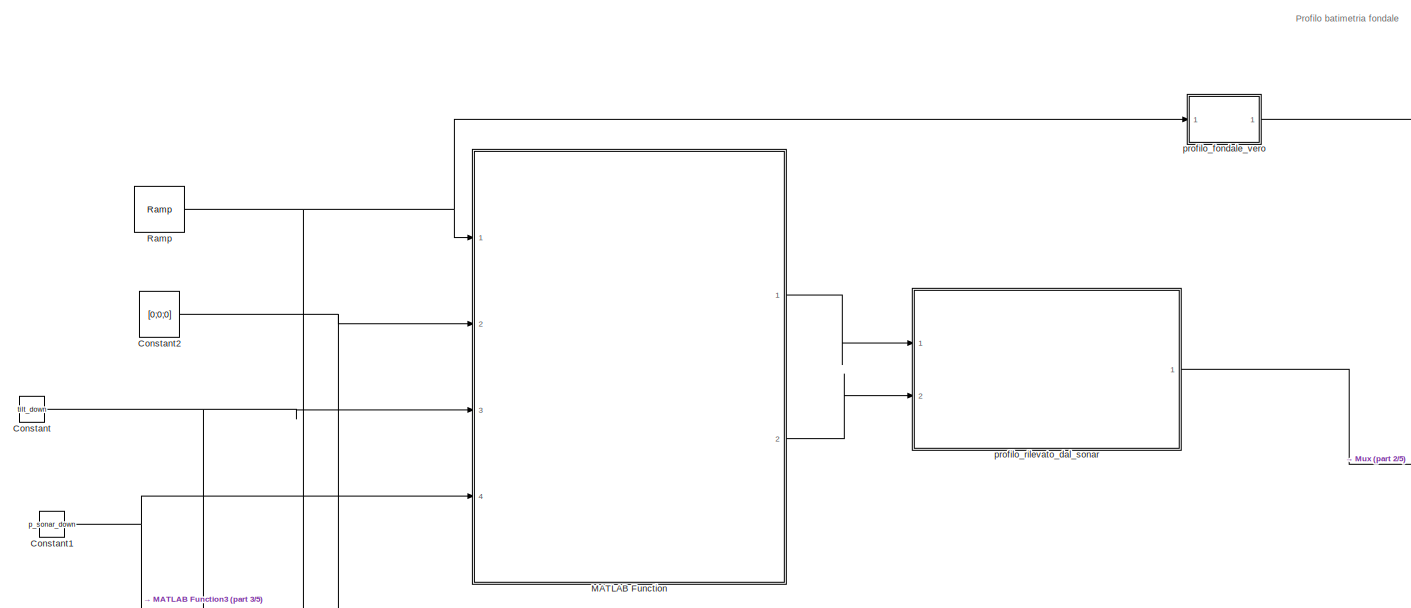
[diagram: root canvas - part 1/5, top left region]
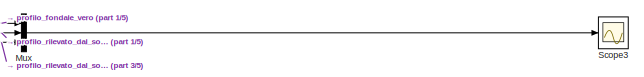
[diagram: root canvas - part 2/5, top right region]
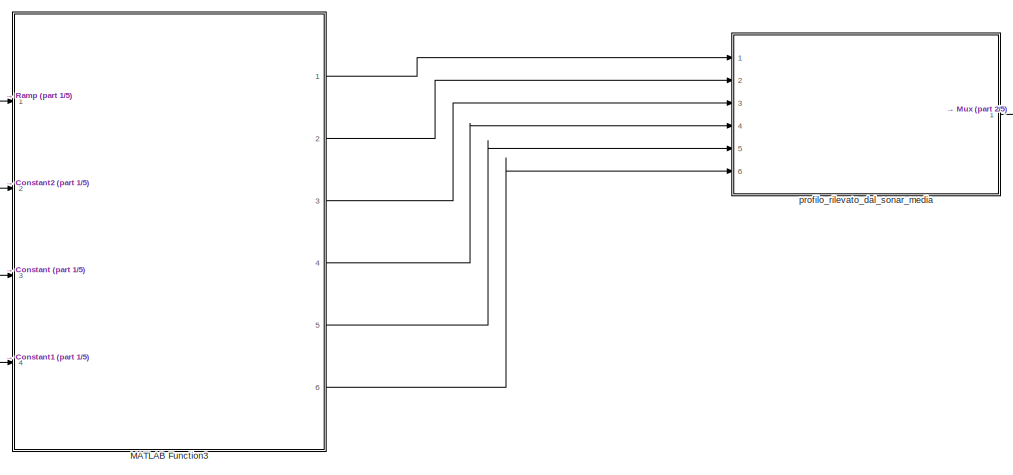
[diagram: root canvas - part 3/5, central region]
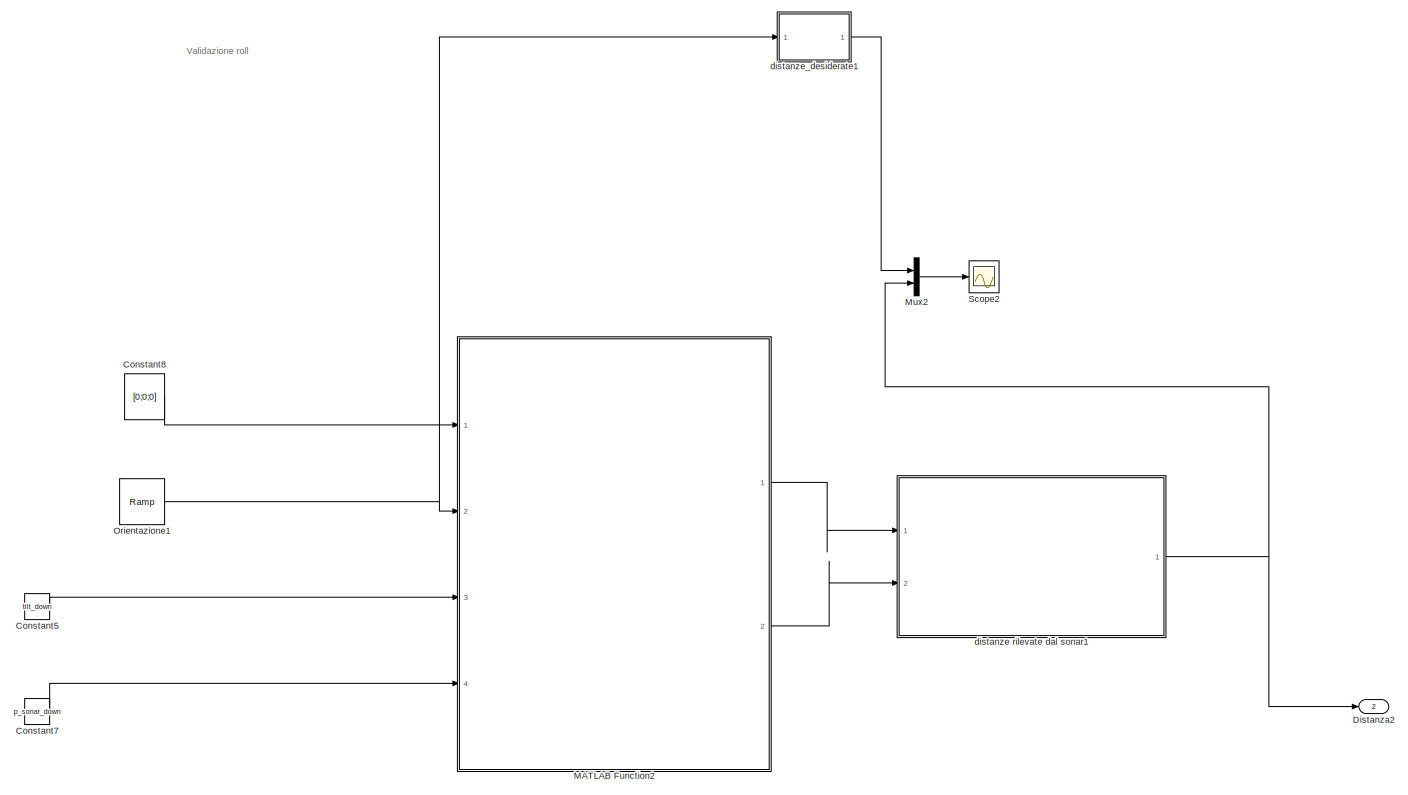
[diagram: root canvas - part 4/5, bottom right region]
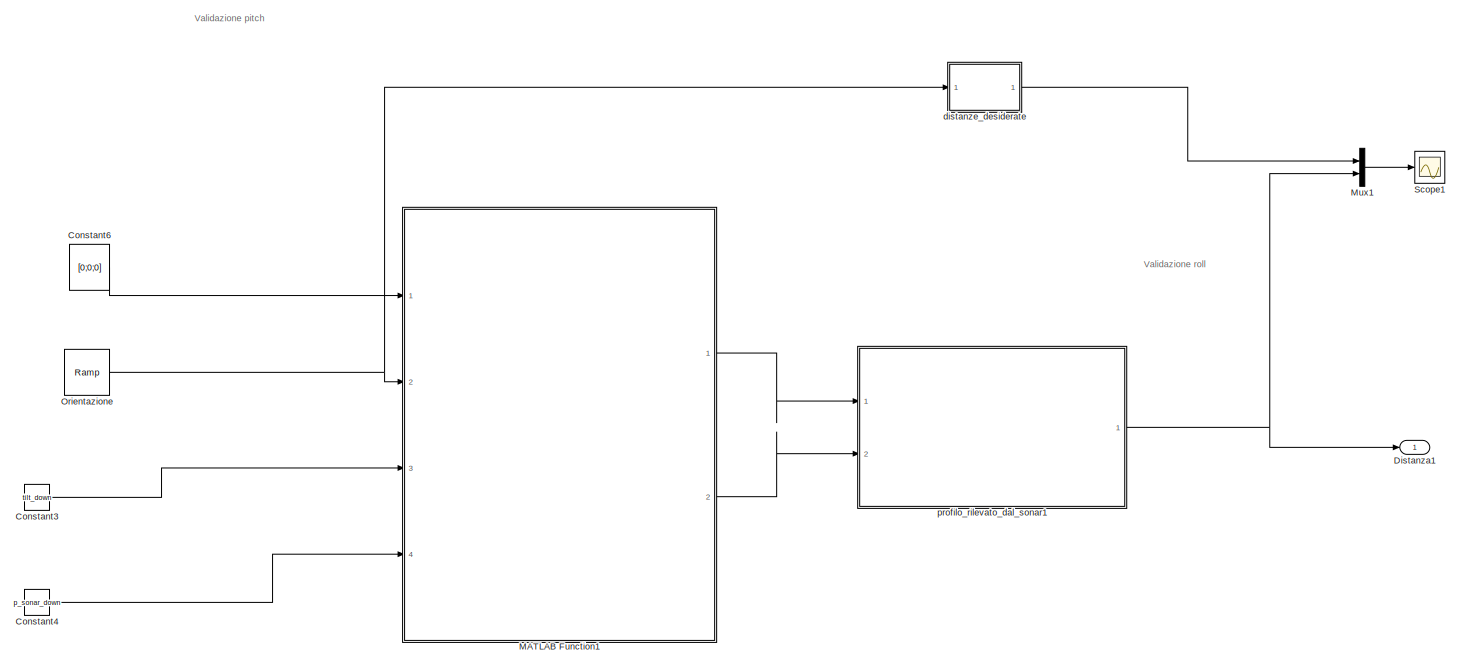
[diagram: root canvas - part 5/5, bottom left region]
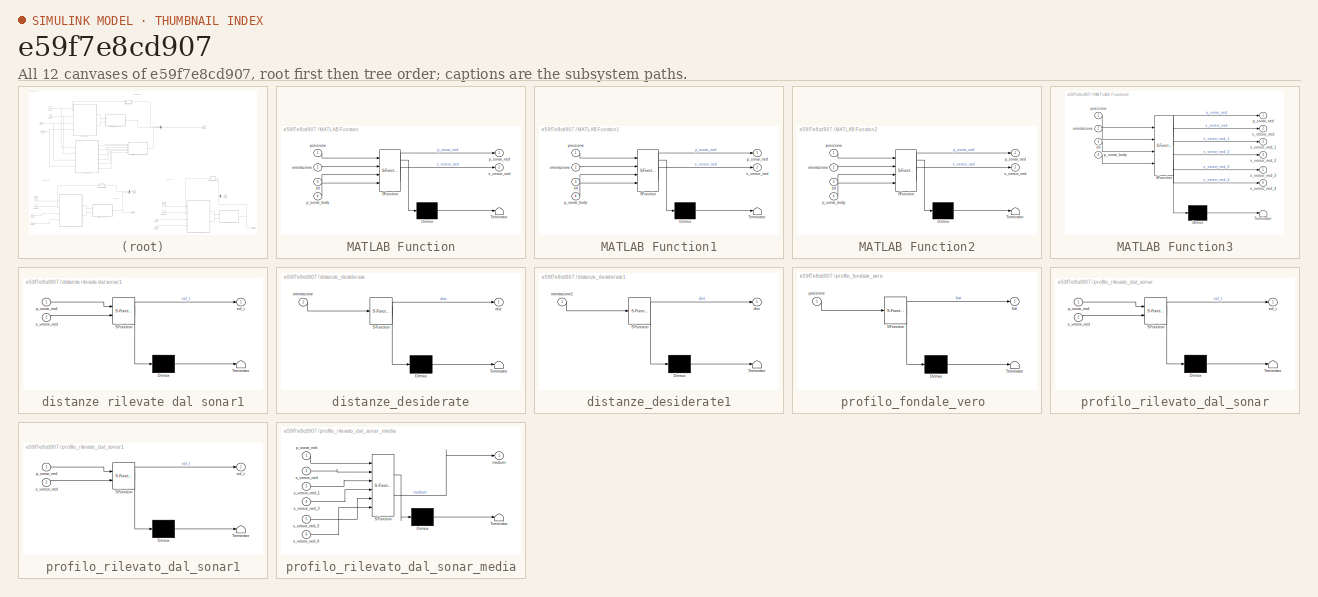
[diagram: thumbnail index - all 12 canvases of the model, root first then tree order]
MODEL slx_e59f7e8cd907
KIND model
CONFIG AbsTol = auto
CONFIG EnableMultiTasking = off
CONFIG FixedStep = auto
CONFIG MaxStep = auto
CONFIG MinStep = auto
CONFIG RelTol = 1e-3
CONFIG SampleTimeConstraint = Unconstrained
CONFIG Solver = VariableStepAuto
CONFIG SolverName = VariableStepAuto
CONFIG StartTime = 0.0
CONFIG StopTime = 5
BLOCK [Constant] Constant
  SampleTime = Ts_sonar_down
  Value = tilt_down
  VectorParams1D = off
BLOCK [Constant] Constant1
  SampleTime = Ts_sonar_down
  Value = p_sonar_down
  VectorParams1D = off
BLOCK [Constant] Constant2
  Value = [0;0;0]
  VectorParams1D = off
BLOCK [Constant] Constant3
  SampleTime = Ts_sonar_down
  Value = tilt_down
  VectorParams1D = off
BLOCK [Constant] Constant4
  SampleTime = Ts_sonar_down
  Value = p_sonar_down
  VectorParams1D = off
BLOCK [Constant] Constant5
  SampleTime = Ts_sonar_down
  Value = tilt_down
  VectorParams1D = off
BLOCK [Constant] Constant6
  Value = [0;0;0]
  VectorParams1D = off
BLOCK [Constant] Constant7
  SampleTime = Ts_sonar_down
  Value = p_sonar_down
  VectorParams1D = off
BLOCK [Constant] Constant8
  Value = [0;0;0]
  VectorParams1D = off
BLOCK [Outport] Distanza1
  VectorParamsAs1DForOutWhenUnconnected = off
BLOCK [Outport] Distanza2
  Port = 2
  VectorParamsAs1DForOutWhenUnconnected = off
BLOCK [SubSystem] MATLAB Function
  ErrorFcn = Stateflow.Translate.translate
  PermitHierarchicalResolution = ExplicitOnly
  Ports = [4, 2]
  RequestExecContextInheritance = off
  SFBlockType = MATLAB Function
  TreatAsAtomicUnit = on
BLOCK [Demux] MATLAB Function/ Demux 
  Outputs = 1
  Ports = [1, 1]
BLOCK [S-Function] MATLAB Function/ SFunction 
  EnableBusSupport = on
  FunctionName = sf_sfun
  PortCounts = [4 3]
  Ports = [4, 3]
  SFcnIsStateOwnerBlock = off
  SFunctionDeploymentMode = off
  Tag = Stateflow S-Function 4
BLOCK [Terminator] MATLAB Function/ Terminator 
BLOCK [Inport] MATLAB Function/orientazione
  Port = 2
BLOCK [Inport] MATLAB Function/p_sonar_body
  Port = 4
BLOCK [Outport] MATLAB Function/p_sonar_ned
  VectorParamsAs1DForOutWhenUnconnected = off
BLOCK [Inport] MATLAB Function/posizione
BLOCK [Outport] MATLAB Function/s_versor_ned
  Port = 2
  VectorParamsAs1DForOutWhenUnconnected = off
BLOCK [Inport] MATLAB Function/tilt
  Port = 3
BLOCK [SubSystem] MATLAB Function1
  ErrorFcn = Stateflow.Translate.translate
  PermitHierarchicalResolution = ExplicitOnly
  Ports = [4, 2]
  RequestExecContextInheritance = off
  SFBlockType = MATLAB Function
  TreatAsAtomicUnit = on
BLOCK [Demux] MATLAB Function1/ Demux 
  Outputs = 1
  Ports = [1, 1]
BLOCK [S-Function] MATLAB Function1/ SFunction 
  EnableBusSupport = on
  FunctionName = sf_sfun
  PortCounts = [4 3]
  Ports = [4, 3]
  SFcnIsStateOwnerBlock = off
  SFunctionDeploymentMode = off
  Tag = Stateflow S-Function 1
BLOCK [Terminator] MATLAB Function1/ Terminator 
BLOCK [Inport] MATLAB Function1/orientazione
  Port = 2
BLOCK [Inport] MATLAB Function1/p_sonar_body
  Port = 4
BLOCK [Outport] MATLAB Function1/p_sonar_ned
  VectorParamsAs1DForOutWhenUnconnected = off
BLOCK [Inport] MATLAB Function1/posizione
BLOCK [Outport] MATLAB Function1/s_versor_ned
  Port = 2
  VectorParamsAs1DForOutWhenUnconnected = off
BLOCK [Inport] MATLAB Function1/tilt
  Port = 3
BLOCK [SubSystem] MATLAB Function2
  ErrorFcn = Stateflow.Translate.translate
  PermitHierarchicalResolution = ExplicitOnly
  Ports = [4, 2]
  RequestExecContextInheritance = off
  SFBlockType = MATLAB Function
  TreatAsAtomicUnit = on
BLOCK [Demux] MATLAB Function2/ Demux 
  Outputs = 1
  Ports = [1, 1]
BLOCK [S-Function] MATLAB Function2/ SFunction 
  EnableBusSupport = on
  FunctionName = sf_sfun
  PortCounts = [4 3]
  Ports = [4, 3]
  SFcnIsStateOwnerBlock = off
  SFunctionDeploymentMode = off
  Tag = Stateflow S-Function 3
BLOCK [Terminator] MATLAB Function2/ Terminator 
BLOCK [Inport] MATLAB Function2/orientazione
  Port = 2
BLOCK [Inport] MATLAB Function2/p_sonar_body
  Port = 4
BLOCK [Outport] MATLAB Function2/p_sonar_ned
  VectorParamsAs1DForOutWhenUnconnected = off
BLOCK [Inport] MATLAB Function2/posizione
BLOCK [Outport] MATLAB Function2/s_versor_ned
  Port = 2
  VectorParamsAs1DForOutWhenUnconnected = off
BLOCK [Inport] MATLAB Function2/tilt
  Port = 3
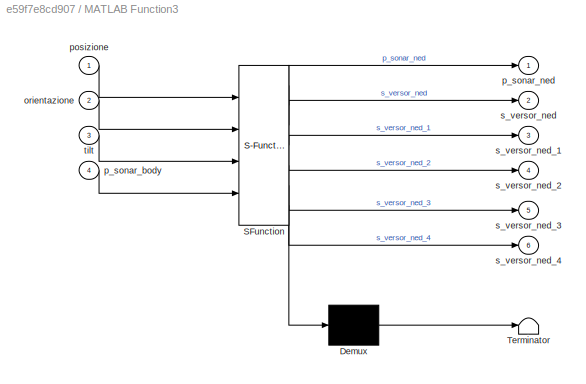
BLOCK [SubSystem] MATLAB Function3
  ErrorFcn = Stateflow.Translate.translate
  PermitHierarchicalResolution = ExplicitOnly
  Ports = [4, 6]
  RequestExecContextInheritance = off
  SFBlockType = MATLAB Function
  TreatAsAtomicUnit = on
BLOCK [Demux] MATLAB Function3/ Demux 
  Outputs = 1
  Ports = [1, 1]
BLOCK [S-Function] MATLAB Function3/ SFunction 
  EnableBusSupport = on
  FunctionName = sf_sfun
  Parameters = beam_width
  PortCounts = [4 7]
  Ports = [4, 7]
  SFcnIsStateOwnerBlock = off
  SFunctionDeploymentMode = off
  Tag = Stateflow S-Function 10
BLOCK [Terminator] MATLAB Function3/ Terminator 
BLOCK [Inport] MATLAB Function3/orientazione
  Port = 2
BLOCK [Inport] MATLAB Function3/p_sonar_body
  Port = 4
BLOCK [Outport] MATLAB Function3/p_sonar_ned
  VectorParamsAs1DForOutWhenUnconnected = off
BLOCK [Inport] MATLAB Function3/posizione
BLOCK [Outport] MATLAB Function3/s_versor_ned
  Port = 2
  VectorParamsAs1DForOutWhenUnconnected = off
BLOCK [Outport] MATLAB Function3/s_versor_ned_1
  Port = 3
BLOCK [Outport] MATLAB Function3/s_versor_ned_2
  Port = 4
BLOCK [Outport] MATLAB Function3/s_versor_ned_3
  Port = 5
BLOCK [Outport] MATLAB Function3/s_versor_ned_4
  Port = 6
BLOCK [Inport] MATLAB Function3/tilt
  Port = 3
BLOCK [Mux] Mux
  DisplayOption = bar
  Inputs = 3
  Ports = [3, 1]
BLOCK [Mux] Mux1
  DisplayOption = bar
  Inputs = 2
  Ports = [2, 1]
BLOCK [Mux] Mux2
  DisplayOption = bar
  Inputs = 2
  Ports = [2, 1]
BLOCK [Reference] Orientazione  REF=simulink/Sources/Ramp
  Ports = [0, 1]
  SourceBlock = simulink/Sources/Ramp
  SourceProductBaseCode = SL
  SourceType = Ramp
BLOCK [Reference] Orientazione1  REF=simulink/Sources/Ramp
  Ports = [0, 1]
  SourceBlock = simulink/Sources/Ramp
  SourceProductBaseCode = SL
  SourceType = Ramp
BLOCK [Reference] Ramp  REF=simulink/Sources/Ramp
  Ports = [0, 1]
  SourceBlock = simulink/Sources/Ramp
  SourceProductBaseCode = SL
  SourceType = Ramp
BLOCK [Scope] Scope1
  Floating = off
  NumInputPorts = 1
  Ports = [1]
  ScopeSpecificationString = Simulink.scopes.TimeScopeBlockCfg('CurrentConfiguration', extmgr.ConfigurationSet(extmgr.Configuration('Core','General UI',true),extmgr.Configuration('Core','Source UI',true),extmgr.Configuration('Sources','WiredSimulink',true,'DataLoggingVariableName','ScopeData1'),extmgr.Configuration('Visuals','Time Domain',true,'SerializedDisplays',{struct('MinYLimReal','39.77287','MaxYLimReal','40.5442','YLab...<+1480ch>
BLOCK [Scope] Scope2
  Floating = off
  NumInputPorts = 1
  Ports = [1]
  ScopeSpecificationString = Simulink.scopes.TimeScopeBlockCfg('CurrentConfiguration', extmgr.ConfigurationSet(extmgr.Configuration('Core','General UI',true),extmgr.Configuration('Core','Source UI',true),extmgr.Configuration('Sources','WiredSimulink',true,'DataLoggingVariableName','ScopeData2'),extmgr.Configuration('Visuals','Time Domain',true,'SerializedDisplays',{struct('MinYLimReal','39.77287','MaxYLimReal','40.5442','YLab...<+1485ch>
BLOCK [Scope] Scope3
  Floating = off
  NumInputPorts = 1
  Ports = [1]
  ScopeSpecificationString = Simulink.scopes.TimeScopeBlockCfg('CurrentConfiguration', extmgr.ConfigurationSet(extmgr.Configuration('Core','General UI',true,'FigureColor',[0 0 0]),extmgr.Configuration('Core','Source UI',true),extmgr.Configuration('Sources','WiredSimulink',true,'DataLoggingVariableName','ScopeData3'),extmgr.Configuration('Visuals','Time Domain',true,'SerializedDisplays',{struct('MinYLimReal','28.87924','MaxYLi...<+1803ch>
BLOCK [SubSystem] distanze rilevate dal sonar1
  ErrorFcn = Stateflow.Translate.translate
  PermitHierarchicalResolution = ExplicitOnly
  Ports = [2, 1]
  RequestExecContextInheritance = off
  SFBlockType = MATLAB Function
  TreatAsAtomicUnit = on
BLOCK [Demux] distanze rilevate dal sonar1/ Demux 
  Outputs = 1
  Ports = [1, 1]
BLOCK [S-Function] distanze rilevate dal sonar1/ SFunction 
  EnableBusSupport = on
  FunctionName = sf_sfun
  PortCounts = [2 2]
  Ports = [2, 2]
  SFcnIsStateOwnerBlock = off
  SFunctionDeploymentMode = off
  Tag = Stateflow S-Function 6
BLOCK [Terminator] distanze rilevate dal sonar1/ Terminator 
BLOCK [Inport] distanze rilevate dal sonar1/p_sonar_ned
BLOCK [Inport] distanze rilevate dal sonar1/s_versor_ned
  Port = 2
BLOCK [Outport] distanze rilevate dal sonar1/sol_t
  VectorParamsAs1DForOutWhenUnconnected = off
BLOCK [SubSystem] distanze_desiderate
  ErrorFcn = Stateflow.Translate.translate
  PermitHierarchicalResolution = ExplicitOnly
  Ports = [1, 1]
  RequestExecContextInheritance = off
  SFBlockType = MATLAB Function
  TreatAsAtomicUnit = on
BLOCK [Demux] distanze_desiderate/ Demux 
  Outputs = 1
  Ports = [1, 1]
BLOCK [S-Function] distanze_desiderate/ SFunction 
  EnableBusSupport = on
  FunctionName = sf_sfun
  PortCounts = [1 2]
  Ports = [1, 2]
  SFcnIsStateOwnerBlock = off
  SFunctionDeploymentMode = off
  Tag = Stateflow S-Function 7
BLOCK [Terminator] distanze_desiderate/ Terminator 
BLOCK [Outport] distanze_desiderate/dist
  VectorParamsAs1DForOutWhenUnconnected = off
BLOCK [Inport] distanze_desiderate/orientazione
BLOCK [SubSystem] distanze_desiderate1
  ErrorFcn = Stateflow.Translate.translate
  PermitHierarchicalResolution = ExplicitOnly
  Ports = [1, 1]
  RequestExecContextInheritance = off
  SFBlockType = MATLAB Function
  TreatAsAtomicUnit = on
BLOCK [Demux] distanze_desiderate1/ Demux 
  Outputs = 1
  Ports = [1, 1]
BLOCK [S-Function] distanze_desiderate1/ SFunction 
  EnableBusSupport = on
  FunctionName = sf_sfun
  PortCounts = [1 2]
  Ports = [1, 2]
  SFcnIsStateOwnerBlock = off
  SFunctionDeploymentMode = off
  Tag = Stateflow S-Function 8
BLOCK [Terminator] distanze_desiderate1/ Terminator 
BLOCK [Outport] distanze_desiderate1/dist
  VectorParamsAs1DForOutWhenUnconnected = off
BLOCK [Inport] distanze_desiderate1/orientazione1
BLOCK [SubSystem] profilo_fondale_vero 
  ErrorFcn = Stateflow.Translate.translate
  PermitHierarchicalResolution = ExplicitOnly
  Ports = [1, 1]
  RequestExecContextInheritance = off
  SFBlockType = MATLAB Function
  TreatAsAtomicUnit = on
BLOCK [Demux] profilo_fondale_vero / Demux 
  Outputs = 1
  Ports = [1, 1]
BLOCK [S-Function] profilo_fondale_vero / SFunction 
  EnableBusSupport = on
  FunctionName = sf_sfun
  PortCounts = [1 2]
  Ports = [1, 2]
  SFcnIsStateOwnerBlock = off
  SFunctionDeploymentMode = off
  Tag = Stateflow S-Function 2
BLOCK [Terminator] profilo_fondale_vero / Terminator 
BLOCK [Outport] profilo_fondale_vero /bat
  VectorParamsAs1DForOutWhenUnconnected = off
BLOCK [Inport] profilo_fondale_vero /posizione
BLOCK [SubSystem] profilo_rilevato_dal_sonar
  ErrorFcn = Stateflow.Translate.translate
  PermitHierarchicalResolution = ExplicitOnly
  Ports = [2, 1]
  RequestExecContextInheritance = off
  SFBlockType = MATLAB Function
  TreatAsAtomicUnit = on
BLOCK [Demux] profilo_rilevato_dal_sonar/ Demux 
  Outputs = 1
  Ports = [1, 1]
BLOCK [S-Function] profilo_rilevato_dal_sonar/ SFunction 
  EnableBusSupport = on
  FunctionName = sf_sfun
  PortCounts = [2 2]
  Ports = [2, 2]
  SFcnIsStateOwnerBlock = off
  SFunctionDeploymentMode = off
  Tag = Stateflow S-Function 5
BLOCK [Terminator] profilo_rilevato_dal_sonar/ Terminator 
BLOCK [Inport] profilo_rilevato_dal_sonar/p_sonar_ned
BLOCK [Inport] profilo_rilevato_dal_sonar/s_versor_ned
  Port = 2
BLOCK [Outport] profilo_rilevato_dal_sonar/sol_t
  VectorParamsAs1DForOutWhenUnconnected = off
BLOCK [SubSystem] profilo_rilevato_dal_sonar1
  ErrorFcn = Stateflow.Translate.translate
  PermitHierarchicalResolution = ExplicitOnly
  Ports = [2, 1]
  RequestExecContextInheritance = off
  SFBlockType = MATLAB Function
  TreatAsAtomicUnit = on
BLOCK [Demux] profilo_rilevato_dal_sonar1/ Demux 
  Outputs = 1
  Ports = [1, 1]
BLOCK [S-Function] profilo_rilevato_dal_sonar1/ SFunction 
  EnableBusSupport = on
  FunctionName = sf_sfun
  PortCounts = [2 2]
  Ports = [2, 2]
  SFcnIsStateOwnerBlock = off
  SFunctionDeploymentMode = off
  Tag = Stateflow S-Function 9
BLOCK [Terminator] profilo_rilevato_dal_sonar1/ Terminator 
BLOCK [Inport] profilo_rilevato_dal_sonar1/p_sonar_ned
BLOCK [Inport] profilo_rilevato_dal_sonar1/s_versor_ned
  Port = 2
BLOCK [Outport] profilo_rilevato_dal_sonar1/sol_t
  VectorParamsAs1DForOutWhenUnconnected = off
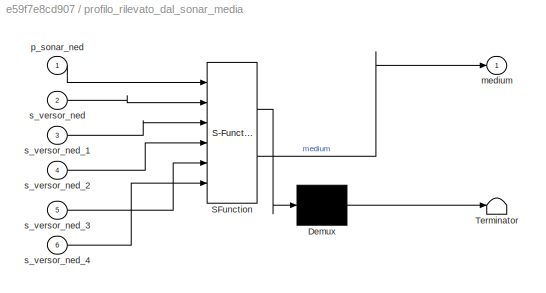
BLOCK [SubSystem] profilo_rilevato_dal_sonar_media
  ErrorFcn = Stateflow.Translate.translate
  PermitHierarchicalResolution = ExplicitOnly
  Ports = [6, 1]
  RequestExecContextInheritance = off
  SFBlockType = MATLAB Function
  TreatAsAtomicUnit = on
BLOCK [Demux] profilo_rilevato_dal_sonar_media/ Demux 
  Outputs = 1
  Ports = [1, 1]
BLOCK [S-Function] profilo_rilevato_dal_sonar_media/ SFunction 
  EnableBusSupport = on
  FunctionName = sf_sfun
  PortCounts = [6 2]
  Ports = [6, 2]
  SFcnIsStateOwnerBlock = off
  SFunctionDeploymentMode = off
  Tag = Stateflow S-Function 11
BLOCK [Terminator] profilo_rilevato_dal_sonar_media/ Terminator 
BLOCK [Outport] profilo_rilevato_dal_sonar_media/medium
  VectorParamsAs1DForOutWhenUnconnected = off
BLOCK [Inport] profilo_rilevato_dal_sonar_media/p_sonar_ned
BLOCK [Inport] profilo_rilevato_dal_sonar_media/s_versor_ned
  Port = 2
BLOCK [Inport] profilo_rilevato_dal_sonar_media/s_versor_ned_1
  Port = 3
BLOCK [Inport] profilo_rilevato_dal_sonar_media/s_versor_ned_2
  Port = 4
BLOCK [Inport] profilo_rilevato_dal_sonar_media/s_versor_ned_3
  Port = 5
BLOCK [Inport] profilo_rilevato_dal_sonar_media/s_versor_ned_4
  Port = 6
ANNOTATION (root): Profilo batimetria fondale
ANNOTATION (root): Validazione roll
ANNOTATION (root): Validazione pitch
NET Constant1:1 -> MATLAB Function3:4, MATLAB Function:4
NET Constant2:1 -> MATLAB Function3:2, MATLAB Function:2
LINE Constant3:1 -> MATLAB Function1:3
LINE Constant4:1 -> MATLAB Function1:4
LINE Constant5:1 -> MATLAB Function2:3
LINE Constant6:1 -> MATLAB Function1:1
LINE Constant7:1 -> MATLAB Function2:4
LINE Constant8:1 -> MATLAB Function2:1
NET Constant:1 -> MATLAB Function3:3, MATLAB Function:3
LINE MATLAB Function1:1 -> profilo_rilevato_dal_sonar1:1
LINE MATLAB Function1:2 -> profilo_rilevato_dal_sonar1:2
LINE MATLAB Function2:1 -> distanze rilevate dal sonar1:1
LINE MATLAB Function2:2 -> distanze rilevate dal sonar1:2
LINE MATLAB Function3:1 -> profilo_rilevato_dal_sonar_media:1
LINE MATLAB Function3:2 -> profilo_rilevato_dal_sonar_media:2
LINE MATLAB Function3:3 -> profilo_rilevato_dal_sonar_media:3
LINE MATLAB Function3:4 -> profilo_rilevato_dal_sonar_media:4
LINE MATLAB Function3:5 -> profilo_rilevato_dal_sonar_media:5
LINE MATLAB Function3:6 -> profilo_rilevato_dal_sonar_media:6
LINE MATLAB Function:1 -> profilo_rilevato_dal_sonar:1
LINE MATLAB Function:2 -> profilo_rilevato_dal_sonar:2
LINE Mux1:1 -> Scope1:1
LINE Mux2:1 -> Scope2:1
LINE Mux:1 -> Scope3:1
NET Orientazione1:1 -> MATLAB Function2:2, distanze_desiderate1:1
NET Orientazione:1 -> MATLAB Function1:2, distanze_desiderate:1
NET Ramp:1 -> MATLAB Function3:1, MATLAB Function:1, profilo_fondale_vero :1
NET distanze rilevate dal sonar1:1 -> Distanza2:1, Mux2:2
LINE distanze_desiderate1:1 -> Mux2:1
LINE distanze_desiderate:1 -> Mux1:1
LINE profilo_fondale_vero :1 -> Mux:1
NET profilo_rilevato_dal_sonar1:1 -> Distanza1:1, Mux1:2
LINE profilo_rilevato_dal_sonar:1 -> Mux:2
LINE profilo_rilevato_dal_sonar_media:1 -> Mux:3
note: NET lines group one-source signal fan-out (src -> all destinations, sorted); 1:1 wires keep LINE
CHART profilo_rilevato_dal_sonar_media states=1 transitions=1
  STATE_LABEL 'eML_blk_kernel()'
  STATE_LABEL "SCRIPT:\nfunction medium = sonar_medium (p_sonar_ned, s_versor_ned,s_versor_ned_1,s_versor_ned_2,s_versor_ned_3,s_versor_ned_4)\ncoder.extrinsic('seabed_function');\ncoder.extrinsic('sonar_media'); \nmedium = 0; \nmedium = sonar_media (p_sonar_ned, s_versor_ned,s_versor_ned_1,s_versor_ned_2,s_versor_ned_3,s_versor_ned_4); \n\nend"
CHART MATLAB Function1 states=1 transitions=1
  STATE_LABEL 'eML_blk_kernel()'
  STATE_LABEL 'SCRIPT:\nfunction [p_sonar_ned, s_versor_ned] = rot_body_ned(posizione,orientazione,tilt,p_sonar_body)\n   \n roll = orientazione(1)\n pitch = orientazione(2)\n yaw = orientazione(3)\n xNorth = posizione(1)\n yEast = posizione(2)\n zDown = posizione(3)\n Rx = [1 0 0; 0 cos(roll) -sin(roll); 0 sin(roll) cos(roll)];\n Ry = [cos(pitch) 0 sin(pitch); 0 1 0; -sin(pitch) 0 cos(pitch)];\n Rz = [cos(yaw) -sin(yaw) 0...<+361ch>'  <repeated x3 — deduplicated; at blocks: MATLAB Function1, MATLAB Function2, MATLAB Function>
CHART profilo_fondale_vero
 states=1 transitions=1
  STATE_LABEL 'eML_blk_kernel()'
  STATE_LABEL "SCRIPT:\nfunction bat = stampa(posizione)\n\ncoder.extrinsic('Validazione_sonar');\nbat = 0;\nbat = Validazione_sonar(posizione)\n\nend"
CHART MATLAB Function2 states=1 transitions=1
  STATE_LABEL 'eML_blk_kernel()'
CHART MATLAB Function states=1 transitions=1
  STATE_LABEL 'eML_blk_kernel()'
CHART profilo_rilevato_dal_sonar states=1 transitions=1
  STATE_LABEL 'eML_blk_kernel()'
  STATE_LABEL "SCRIPT:\nfunction sol_t = sonar_down(p_sonar_ned, s_versor_ned)\n\ncoder.extrinsic('seabed_function');\nsol_t = 0;\nsol_t = seabed_function(p_sonar_ned, s_versor_ned)\n\nend"
CHART distanze rilevate dal sonar1 states=1 transitions=1
  STATE_LABEL 'eML_blk_kernel()'
  STATE_LABEL "SCRIPT:\nfunction sol_t = sonar_down(p_sonar_ned, s_versor_ned)\n\ncoder.extrinsic('fondale_piatto');\nsol_t = 0;\nsol_t = fondale_piatto(p_sonar_ned, s_versor_ned)\n\nend"
CHART distanze_desiderate states=1 transitions=1
  STATE_LABEL 'eML_blk_kernel()'
  STATE_LABEL 'SCRIPT:\nfunction dist = beccheggio(orientazione)\n\nc = 0.15;\n\nh = 40 - c; % distanza del sonar dal fondale\n\ndist = 0;\ndist = h/cos(orientazione(2));\n\nend\n\n'
CHART distanze_desiderate1 states=1 transitions=1
  STATE_LABEL 'eML_blk_kernel()'
  STATE_LABEL 'SCRIPT:\nfunction dist = rollio(orientazione1)\n\nc = 0.15;\n\nh = 40 - c; % distanza del sonar dal fondale\n\ndist = 0;\ndist = h/cos(orientazione1(1));\n\nend\n\n'
CHART profilo_rilevato_dal_sonar1 states=1 transitions=1
  STATE_LABEL 'eML_blk_kernel()'
  STATE_LABEL "SCRIPT:\nfunction sol_t = sonar_down(p_sonar_ned, s_versor_ned)\n\ncoder.extrinsic('fondale_piatto');\nsol_t = 0;\nsol_t = fondale_piatto(p_sonar_ned, s_versor_ned)\n\nend"
CHART MATLAB Function3 states=1 transitions=1
  STATE_LABEL 'eML_blk_kernel()'
  STATE_LABEL 'SCRIPT:\nfunction [p_sonar_ned, s_versor_ned,s_versor_ned_1,s_versor_ned_2,s_versor_ned_3,s_versor_ned_4] = rot_body_ned_media(posizione,orientazione,tilt,p_sonar_body,beam_width)\n roll = orientazione(1)\n pitch = orientazione(2)\n yaw = orientazione(3)\n xNorth = posizione(1)\n yEast = posizione(2)\n zDown = posizione(3)\n Rx = [1 0 0; 0 cos(roll) -sin(roll); 0 sin(roll) cos(roll)];\n Ry = [cos(pitch) 0 ...<+1299ch>'
CHART  states=0 transitions=0
CHART  states=0 transitions=0
CHART  states=0 transitions=0
CHART  states=0 transitions=0
CHART  states=0 transitions=0
CHART  states=0 transitions=0
CHART  states=0 transitions=0
CHART  states=0 transitions=0
CHART  states=0 transitions=0
CHART  states=0 transitions=0
CHART  states=0 transitions=0
